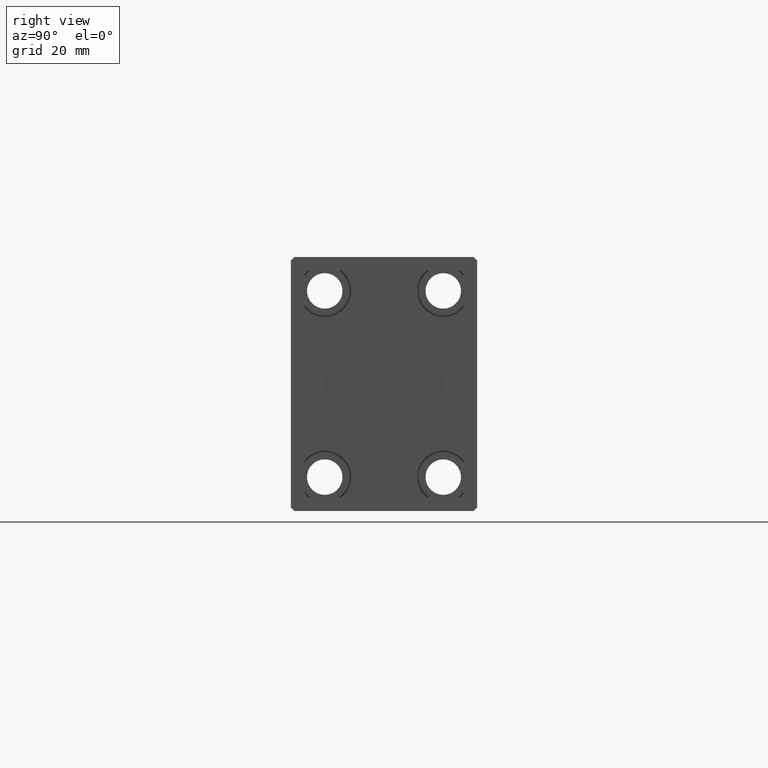
[diagram: clean part render]
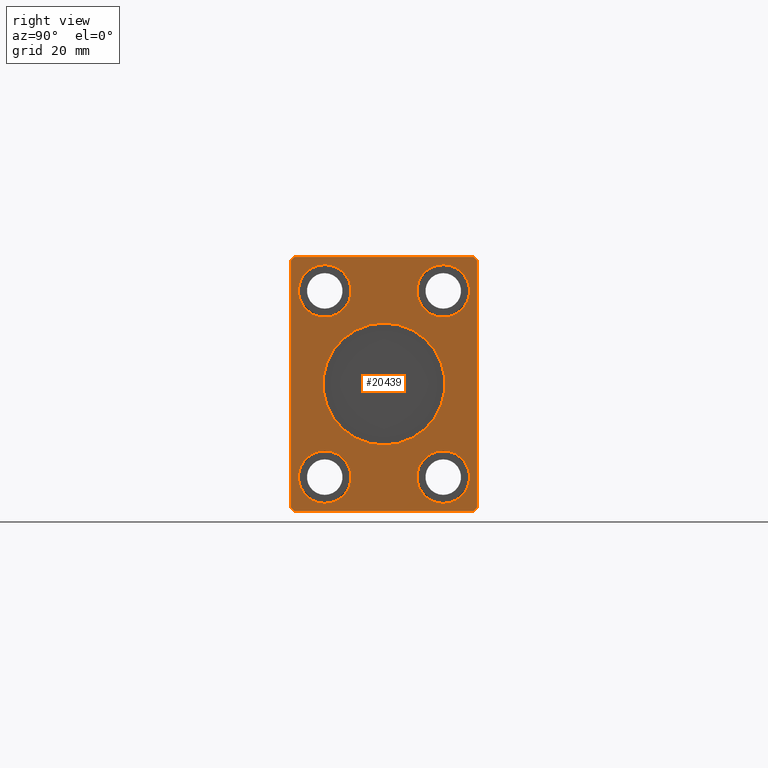
[diagram: same view with one face highlighted and labeled with its STEP entity id]
A machine part, right view. The second image highlights one B-rep face of the part: STEP entity #20439.
In plain terms, the highlighted planar face has unit normal (1, 0, 0).
Its self-contained STEP definition (entity closure, byte-faithful):
#158 = AXIS2_PLACEMENT_3D ( 'NONE', #18265, #37664, #37870 ) ;
#374 = CARTESIAN_POINT ( 'NONE',  ( 195.0000000000000000, -27.50000000000000355, -36.49999999999998579 ) ) ;
#1013 = EDGE_CURVE ( 'NONE', #14046, #32727, #4118, .T. ) ;
#1367 = AXIS2_PLACEMENT_3D ( 'NONE', #19487, #9987, #19904 ) ;
#1539 = EDGE_LOOP ( 'NONE', ( #2858, #39832 ) ) ;
#1619 = DIRECTION ( 'NONE',  ( 0.000000000000000000, 0.7071067811865474617, 0.7071067811865474617 ) ) ;
#2135 = ORIENTED_EDGE ( 'NONE', *, *, #18120, .T. ) ;
#2361 = EDGE_CURVE ( 'NONE', #39132, #42440, #19037, .T. ) ;
#2380 = AXIS2_PLACEMENT_3D ( 'NONE', #5284, #5493, #28345 ) ;
#2558 = LINE ( 'NONE', #12902, #18560 ) ;
#2693 = FACE_BOUND ( 'NONE', #6708, .T. ) ;
#2858 = ORIENTED_EDGE ( 'NONE', *, *, #27711, .T. ) ;
#2931 = DIRECTION ( 'NONE',  ( 0.000000000000000000, -0.7071067811865474617, 0.7071067811865474617 ) ) ;
#2953 = AXIS2_PLACEMENT_3D ( 'NONE', #19594, #15702, #32726 ) ;
#3227 = ORIENTED_EDGE ( 'NONE', *, *, #4746, .T. ) ;
#3459 = LINE ( 'NONE', #29119, #40058 ) ;
#4118 = CIRCLE ( 'NONE', #36485, 7.750000000000003553 ) ;
#4268 = CIRCLE ( 'NONE', #158, 7.750000000000003553 ) ;
#4450 = DIRECTION ( 'NONE',  ( 0.000000000000000000, 0.7071067811865451302, -0.7071067811865500152 ) ) ;
#4746 = EDGE_CURVE ( 'NONE', #24693, #28247, #38026, .T. ) ;
#5249 = CIRCLE ( 'NONE', #23846, 18.00000000000000000 ) ;
#5284 = CARTESIAN_POINT ( 'NONE',  ( 195.0000000000000000, 0.000000000000000000, 0.000000000000000000 ) ) ;
#5493 = DIRECTION ( 'NONE',  ( 1.000000000000000000, 0.000000000000000000, 0.000000000000000000 ) ) ;
#5587 = VERTEX_POINT ( 'NONE', #31514 ) ;
#6526 = CARTESIAN_POINT ( 'NONE',  ( 195.0000000000000000, 17.50000000000000000, 27.50000000000000000 ) ) ;
#6705 = ORIENTED_EDGE ( 'NONE', *, *, #27982, .T. ) ;
#6708 = EDGE_LOOP ( 'NONE', ( #22324, #11135 ) ) ;
#6786 = EDGE_CURVE ( 'NONE', #29780, #10170, #3459, .T. ) ;
#6977 = CIRCLE ( 'NONE', #40017, 7.750000000000003553 ) ;
#7353 = CARTESIAN_POINT ( 'NONE',  ( 195.0000000000000000, -27.50000000000000711, 36.50000000000000711 ) ) ;
#8139 = CARTESIAN_POINT ( 'NONE',  ( 195.0000000000000000, 27.50000000000000711, -36.49999999999999289 ) ) ;
#8484 = EDGE_CURVE ( 'NONE', #5587, #26682, #37356, .T. ) ;
#8787 = CARTESIAN_POINT ( 'NONE',  ( 195.0000000000000000, -17.50000000000000000, 19.74999999999999645 ) ) ;
#9089 = VERTEX_POINT ( 'NONE', #12301 ) ;
#9131 = EDGE_CURVE ( 'NONE', #11986, #10308, #21516, .T. ) ;
#9170 = LINE ( 'NONE', #13048, #23285 ) ;
#9648 = ORIENTED_EDGE ( 'NONE', *, *, #1013, .F. ) ;
#9987 = DIRECTION ( 'NONE',  ( 1.000000000000000000, 0.000000000000000000, 0.000000000000000000 ) ) ;
#10143 = ORIENTED_EDGE ( 'NONE', *, *, #2361, .T. ) ;
#10170 = VERTEX_POINT ( 'NONE', #28053 ) ;
#10308 = VERTEX_POINT ( 'NONE', #30570 ) ;
#10553 = VERTEX_POINT ( 'NONE', #22251 ) ;
#10635 = EDGE_CURVE ( 'NONE', #26682, #5587, #6977, .T. ) ;
#11000 = AXIS2_PLACEMENT_3D ( 'NONE', #35576, #29774, #15982 ) ;
#11135 = ORIENTED_EDGE ( 'NONE', *, *, #10635, .F. ) ;
#11168 = ORIENTED_EDGE ( 'NONE', *, *, #41157, .T. ) ;
#11430 = CARTESIAN_POINT ( 'NONE',  ( 195.0000000000000000, 2.204364238465235428E-15, 18.00000000000000000 ) ) ;
#11986 = VERTEX_POINT ( 'NONE', #8787 ) ;
#12301 = CARTESIAN_POINT ( 'NONE',  ( 195.0000000000000000, 17.50000000000000000, -19.74999999999999645 ) ) ;
#12506 = LINE ( 'NONE', #26509, #34064 ) ;
#12566 = DIRECTION ( 'NONE',  ( 1.000000000000000000, 0.000000000000000000, 0.000000000000000000 ) ) ;
#12660 = CIRCLE ( 'NONE', #36763, 7.750000000000003553 ) ;
#12902 = CARTESIAN_POINT ( 'NONE',  ( 195.0000000000000000, -26.50000000000000711, 37.50000000000000711 ) ) ;
#13048 = CARTESIAN_POINT ( 'NONE',  ( 195.0000000000000000, 27.50000000000000355, 36.50000000000000711 ) ) ;
#13204 = DIRECTION ( 'NONE',  ( 0.000000000000000000, 0.000000000000000000, -1.000000000000000000 ) ) ;
#13683 = CARTESIAN_POINT ( 'NONE',  ( 195.0000000000000000, -26.50000000000000355, -37.49999999999999289 ) ) ;
#14046 = VERTEX_POINT ( 'NONE', #19821 ) ;
#14363 = ORIENTED_EDGE ( 'NONE', *, *, #27378, .F. ) ;
#15114 = VERTEX_POINT ( 'NONE', #11430 ) ;
#15118 = CIRCLE ( 'NONE', #11000, 7.750000000000003553 ) ;
#15317 = DIRECTION ( 'NONE',  ( 0.000000000000000000, 0.000000000000000000, 1.000000000000000000 ) ) ;
#15486 = DIRECTION ( 'NONE',  ( 0.000000000000000000, 0.000000000000000000, -1.000000000000000000 ) ) ;
#15633 = PLANE ( 'NONE',  #2380 ) ;
#15702 = DIRECTION ( 'NONE',  ( 1.000000000000000000, -0.000000000000000000, -0.000000000000000000 ) ) ;
#15709 = DIRECTION ( 'NONE',  ( 0.000000000000000000, -0.7071067811865474617, -0.7071067811865474617 ) ) ;
#15737 = CARTESIAN_POINT ( 'NONE',  ( 195.0000000000000000, 17.50000000000000000, -27.50000000000000000 ) ) ;
#15982 = DIRECTION ( 'NONE',  ( 0.000000000000000000, 0.000000000000000000, 1.000000000000000000 ) ) ;
#15983 = DIRECTION ( 'NONE',  ( 0.000000000000000000, 0.000000000000000000, 1.000000000000000000 ) ) ;
#16436 = DIRECTION ( 'NONE',  ( 1.000000000000000000, -0.000000000000000000, -0.000000000000000000 ) ) ;
#16774 = CARTESIAN_POINT ( 'NONE',  ( 195.0000000000000000, -26.50000000000000711, 37.50000000000000711 ) ) ;
#18120 = EDGE_CURVE ( 'NONE', #10308, #11986, #12660, .T. ) ;
#18265 = CARTESIAN_POINT ( 'NONE',  ( 195.0000000000000000, -17.50000000000000000, -27.50000000000000000 ) ) ;
#18383 = CARTESIAN_POINT ( 'NONE',  ( 195.0000000000000000, -17.50000000000000000, -35.25000000000000000 ) ) ;
#18398 = CARTESIAN_POINT ( 'NONE',  ( 195.0000000000000000, 26.50000000000000355, 37.50000000000000711 ) ) ;
#18429 = FACE_BOUND ( 'NONE', #1539, .T. ) ;
#18560 = VECTOR ( 'NONE', #15709, 1000.000000000000114 ) ;
#18835 = ORIENTED_EDGE ( 'NONE', *, *, #6786, .T. ) ;
#19037 = LINE ( 'NONE', #18398, #24105 ) ;
#19074 = FACE_OUTER_BOUND ( 'NONE', #39999, .T. ) ;
#19487 = CARTESIAN_POINT ( 'NONE',  ( 195.0000000000000000, 0.000000000000000000, 0.000000000000000000 ) ) ;
#19594 = CARTESIAN_POINT ( 'NONE',  ( 195.0000000000000000, 17.50000000000000000, 27.50000000000000000 ) ) ;
#19821 = CARTESIAN_POINT ( 'NONE',  ( 195.0000000000000000, -17.50000000000000000, -19.74999999999999645 ) ) ;
#19838 = DIRECTION ( 'NONE',  ( 0.000000000000000000, 1.000000000000000000, 0.000000000000000000 ) ) ;
#19904 = DIRECTION ( 'NONE',  ( 0.000000000000000000, 0.000000000000000000, -1.000000000000000000 ) ) ;
#20183 = AXIS2_PLACEMENT_3D ( 'NONE', #15737, #31675, #15317 ) ;
#20409 = LINE ( 'NONE', #374, #30417 ) ;
#20439 = ADVANCED_FACE ( 'NONE', ( #21662, #34805, #18429, #19074, #31566, #2693 ), #15633, .T. ) ;
#20816 = VERTEX_POINT ( 'NONE', #25865 ) ;
#21495 = EDGE_CURVE ( 'NONE', #20816, #15114, #5249, .T. ) ;
#21516 = CIRCLE ( 'NONE', #26332, 7.750000000000003553 ) ;
#21662 = FACE_BOUND ( 'NONE', #26850, .T. ) ;
#22005 = DIRECTION ( 'NONE',  ( -1.000000000000000000, -0.000000000000000000, -0.000000000000000000 ) ) ;
#22251 = CARTESIAN_POINT ( 'NONE',  ( 195.0000000000000000, 27.50000000000000355, 36.50000000000000711 ) ) ;
#22319 = EDGE_CURVE ( 'NONE', #25569, #24693, #12506, .T. ) ;
#22324 = ORIENTED_EDGE ( 'NONE', *, *, #8484, .F. ) ;
#22427 = DIRECTION ( 'NONE',  ( 0.000000000000000000, 4.752667057470705491E-17, -1.000000000000000000 ) ) ;
#22844 = EDGE_CURVE ( 'NONE', #10553, #39132, #9170, .T. ) ;
#23285 = VECTOR ( 'NONE', #2931, 1000.000000000000114 ) ;
#23846 = AXIS2_PLACEMENT_3D ( 'NONE', #31521, #12566, #41236 ) ;
#24105 = VECTOR ( 'NONE', #38652, 1000.000000000000000 ) ;
#24693 = VERTEX_POINT ( 'NONE', #31564 ) ;
#25022 = ORIENTED_EDGE ( 'NONE', *, *, #22319, .T. ) ;
#25373 = DIRECTION ( 'NONE',  ( 0.000000000000000000, -4.752667057470704875E-17, 1.000000000000000000 ) ) ;
#25561 = CARTESIAN_POINT ( 'NONE',  ( 195.0000000000000000, 27.50000000000000711, -36.49999999999999289 ) ) ;
#25569 = VERTEX_POINT ( 'NONE', #13683 ) ;
#25666 = VECTOR ( 'NONE', #25373, 1000.000000000000000 ) ;
#25865 = CARTESIAN_POINT ( 'NONE',  ( 195.0000000000000000, 0.000000000000000000, -18.00000000000000000 ) ) ;
#26116 = DIRECTION ( 'NONE',  ( -1.000000000000000000, -0.000000000000000000, -0.000000000000000000 ) ) ;
#26332 = AXIS2_PLACEMENT_3D ( 'NONE', #38388, #22005, #15983 ) ;
#26351 = CIRCLE ( 'NONE', #20183, 7.750000000000003553 ) ;
#26509 = CARTESIAN_POINT ( 'NONE',  ( 195.0000000000000000, -26.50000000000000355, -37.49999999999999289 ) ) ;
#26682 = VERTEX_POINT ( 'NONE', #37346 ) ;
#26735 = EDGE_LOOP ( 'NONE', ( #28394, #9648 ) ) ;
#26850 = EDGE_LOOP ( 'NONE', ( #42448, #14363 ) ) ;
#27378 = EDGE_CURVE ( 'NONE', #15114, #20816, #32311, .T. ) ;
#27711 = EDGE_CURVE ( 'NONE', #31485, #9089, #15118, .T. ) ;
#27982 = EDGE_CURVE ( 'NONE', #42440, #29780, #2558, .T. ) ;
#28053 = CARTESIAN_POINT ( 'NONE',  ( 195.0000000000000000, -27.50000000000000355, -36.49999999999998579 ) ) ;
#28102 = CARTESIAN_POINT ( 'NONE',  ( 195.0000000000000000, 26.50000000000000711, -37.49999999999999289 ) ) ;
#28247 = VERTEX_POINT ( 'NONE', #25561 ) ;
#28345 = DIRECTION ( 'NONE',  ( 0.000000000000000000, 0.000000000000000000, -1.000000000000000000 ) ) ;
#28394 = ORIENTED_EDGE ( 'NONE', *, *, #38400, .F. ) ;
#29119 = CARTESIAN_POINT ( 'NONE',  ( 195.0000000000000000, -27.50000000000000711, 36.50000000000000711 ) ) ;
#29774 = DIRECTION ( 'NONE',  ( -1.000000000000000000, -0.000000000000000000, -0.000000000000000000 ) ) ;
#29780 = VERTEX_POINT ( 'NONE', #7353 ) ;
#29796 = CARTESIAN_POINT ( 'NONE',  ( 195.0000000000000000, -17.50000000000000000, 27.50000000000000000 ) ) ;
#30417 = VECTOR ( 'NONE', #4450, 1000.000000000000114 ) ;
#30570 = CARTESIAN_POINT ( 'NONE',  ( 195.0000000000000000, -17.50000000000000000, 35.25000000000000000 ) ) ;
#31485 = VERTEX_POINT ( 'NONE', #33443 ) ;
#31514 = CARTESIAN_POINT ( 'NONE',  ( 195.0000000000000000, 17.50000000000000000, 19.74999999999999645 ) ) ;
#31521 = CARTESIAN_POINT ( 'NONE',  ( 195.0000000000000000, 0.000000000000000000, 0.000000000000000000 ) ) ;
#31564 = CARTESIAN_POINT ( 'NONE',  ( 195.0000000000000000, 26.50000000000000711, -37.49999999999999289 ) ) ;
#31566 = FACE_BOUND ( 'NONE', #26735, .T. ) ;
#31675 = DIRECTION ( 'NONE',  ( -1.000000000000000000, -0.000000000000000000, -0.000000000000000000 ) ) ;
#32311 = CIRCLE ( 'NONE', #1367, 18.00000000000000000 ) ;
#32726 = DIRECTION ( 'NONE',  ( 0.000000000000000000, 0.000000000000000000, -1.000000000000000000 ) ) ;
#32727 = VERTEX_POINT ( 'NONE', #18383 ) ;
#33443 = CARTESIAN_POINT ( 'NONE',  ( 195.0000000000000000, 17.50000000000000000, -35.25000000000000000 ) ) ;
#34064 = VECTOR ( 'NONE', #19838, 1000.000000000000000 ) ;
#34440 = LINE ( 'NONE', #8139, #25666 ) ;
#34497 = VECTOR ( 'NONE', #1619, 1000.000000000000114 ) ;
#34805 = FACE_BOUND ( 'NONE', #39869, .T. ) ;
#35576 = CARTESIAN_POINT ( 'NONE',  ( 195.0000000000000000, 17.50000000000000000, -27.50000000000000000 ) ) ;
#36076 = ORIENTED_EDGE ( 'NONE', *, *, #39249, .T. ) ;
#36485 = AXIS2_PLACEMENT_3D ( 'NONE', #41984, #38318, #15486 ) ;
#36488 = ORIENTED_EDGE ( 'NONE', *, *, #22844, .T. ) ;
#36763 = AXIS2_PLACEMENT_3D ( 'NONE', #29796, #26116, #39275 ) ;
#37346 = CARTESIAN_POINT ( 'NONE',  ( 195.0000000000000000, 17.50000000000000000, 35.25000000000000000 ) ) ;
#37356 = CIRCLE ( 'NONE', #2953, 7.750000000000003553 ) ;
#37664 = DIRECTION ( 'NONE',  ( 1.000000000000000000, -0.000000000000000000, -0.000000000000000000 ) ) ;
#37870 = DIRECTION ( 'NONE',  ( 0.000000000000000000, 0.000000000000000000, -1.000000000000000000 ) ) ;
#38026 = LINE ( 'NONE', #28102, #34497 ) ;
#38318 = DIRECTION ( 'NONE',  ( 1.000000000000000000, -0.000000000000000000, -0.000000000000000000 ) ) ;
#38388 = CARTESIAN_POINT ( 'NONE',  ( 195.0000000000000000, -17.50000000000000000, 27.50000000000000000 ) ) ;
#38400 = EDGE_CURVE ( 'NONE', #32727, #14046, #4268, .T. ) ;
#38652 = DIRECTION ( 'NONE',  ( 0.000000000000000000, -1.000000000000000000, 0.000000000000000000 ) ) ;
#39085 = ORIENTED_EDGE ( 'NONE', *, *, #9131, .T. ) ;
#39132 = VERTEX_POINT ( 'NONE', #39806 ) ;
#39249 = EDGE_CURVE ( 'NONE', #10170, #25569, #20409, .T. ) ;
#39275 = DIRECTION ( 'NONE',  ( 0.000000000000000000, 0.000000000000000000, 1.000000000000000000 ) ) ;
#39806 = CARTESIAN_POINT ( 'NONE',  ( 195.0000000000000000, 26.50000000000000355, 37.50000000000000711 ) ) ;
#39832 = ORIENTED_EDGE ( 'NONE', *, *, #41012, .T. ) ;
#39869 = EDGE_LOOP ( 'NONE', ( #39085, #2135 ) ) ;
#39999 = EDGE_LOOP ( 'NONE', ( #36488, #10143, #6705, #18835, #36076, #25022, #3227, #11168 ) ) ;
#40017 = AXIS2_PLACEMENT_3D ( 'NONE', #6526, #16436, #13204 ) ;
#40058 = VECTOR ( 'NONE', #22427, 1000.000000000000000 ) ;
#41012 = EDGE_CURVE ( 'NONE', #9089, #31485, #26351, .T. ) ;
#41157 = EDGE_CURVE ( 'NONE', #28247, #10553, #34440, .T. ) ;
#41236 = DIRECTION ( 'NONE',  ( 0.000000000000000000, 0.000000000000000000, -1.000000000000000000 ) ) ;
#41984 = CARTESIAN_POINT ( 'NONE',  ( 195.0000000000000000, -17.50000000000000000, -27.50000000000000000 ) ) ;
#42440 = VERTEX_POINT ( 'NONE', #16774 ) ;
#42448 = ORIENTED_EDGE ( 'NONE', *, *, #21495, .F. ) ;